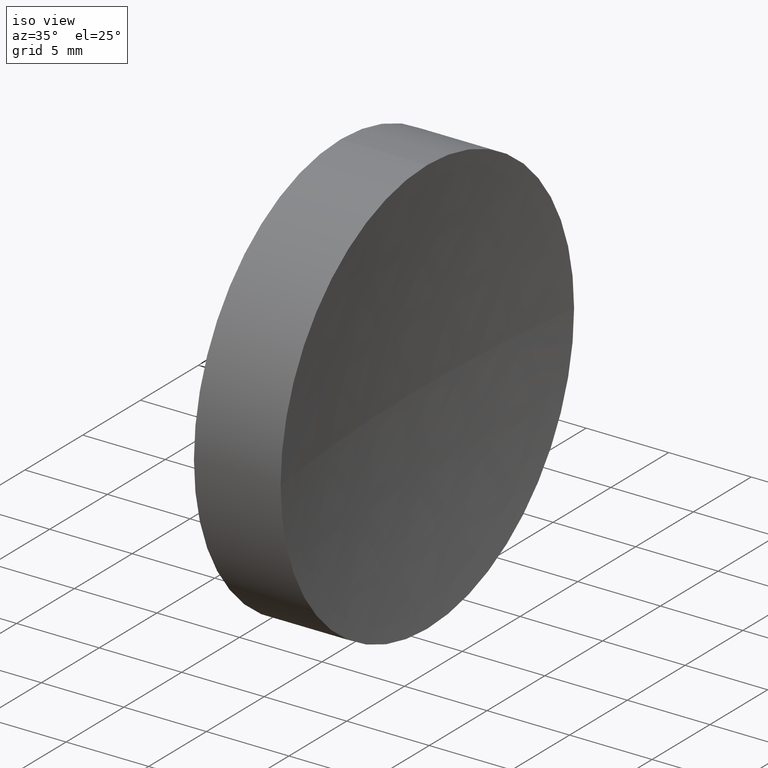
[diagram: clean part render]
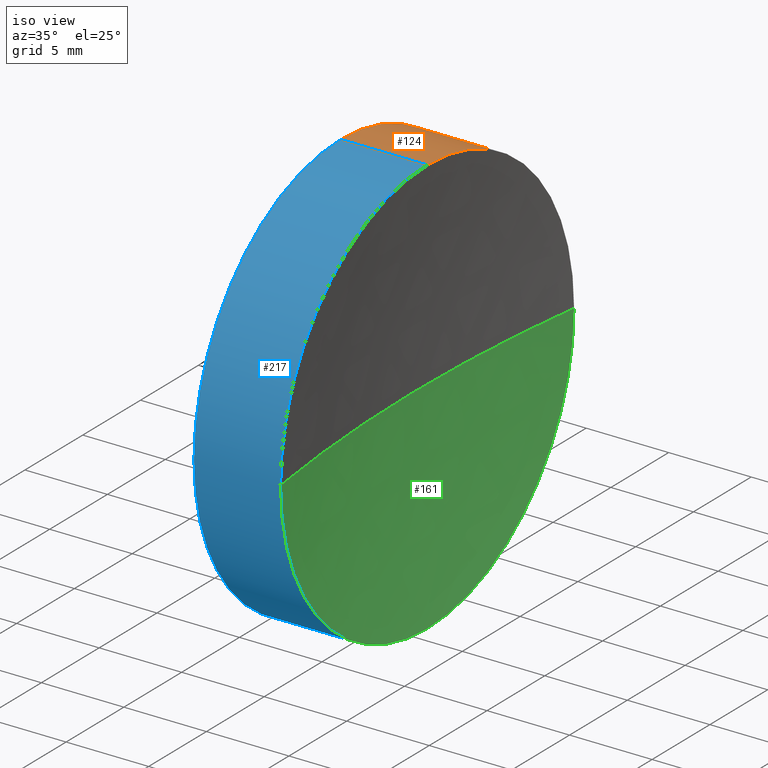
[diagram: same view with three faces highlighted in distinct colors, each labeled with its STEP entity id]
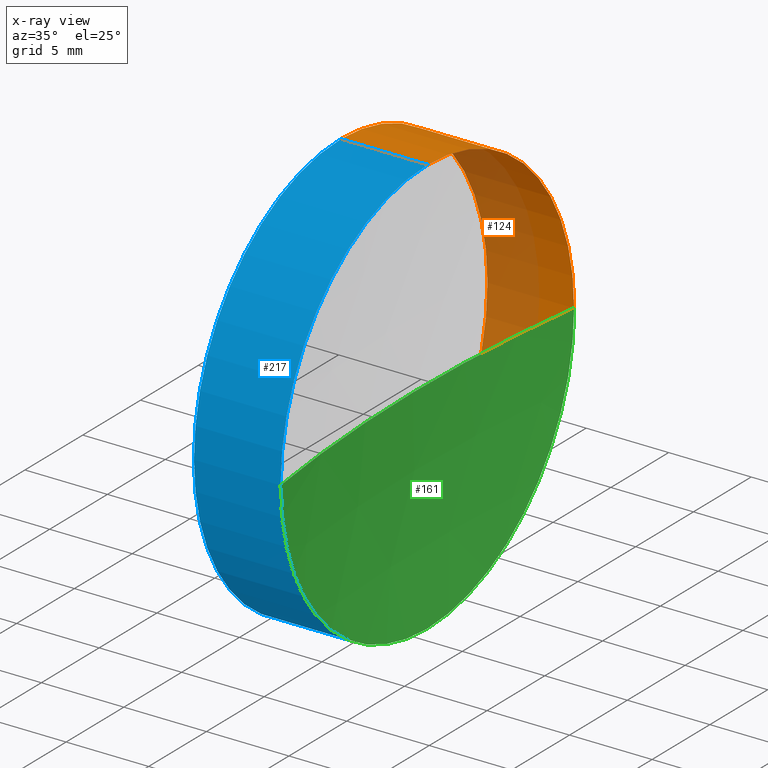
[diagram: x-ray of the same camera — body ghosted, the three highlighted faces saturated]
A machine part, iso view with three faces highlighted in distinct colors.
The next image is the same camera in x-ray (body ghosted, the three faces saturated) — at least one of them is partly hidden behind the body in this view.
Their STEP definitions:

[orange] entity #124 — the highlighted cylindrical surface (partial cylindrical patch) has radius 12.7 mm, axis along (-1, -0, -0).
#4 = CARTESIAN_POINT ( 'NONE',  ( 117.4776727839183900, 77.92260287298734100, 0.0000000000000000000 ) ) ;
#5 = VECTOR ( 'NONE', #171, 1000.000000000000000 ) ;
#6 = DIRECTION ( 'NONE',  ( 0.0000000000000000000, 0.0000000000000000000, 1.000000000000000000 ) ) ;
#7 = ORIENTED_EDGE ( 'NONE', *, *, #120, .T. ) ;
#8 = CARTESIAN_POINT ( 'NONE',  ( 117.4776727839183900, 65.22260287298739500, -12.69999999999997400 ) ) ;
#9 = EDGE_CURVE ( 'NONE', #164, #29, #129, .T. ) ;
#16 = FACE_OUTER_BOUND ( 'NONE', #72, .T. ) ;
#25 = CARTESIAN_POINT ( 'NONE',  ( 122.7277341085402600, 77.92260287298734100, 0.0000000000000000000 ) ) ;
#29 = VERTEX_POINT ( 'NONE', #132 ) ;
#32 = ORIENTED_EDGE ( 'NONE', *, *, #185, .F. ) ;
#43 = CIRCLE ( 'NONE', #208, 12.69999999999997400 ) ;
#47 = LINE ( 'NONE', #202, #5 ) ;
#49 = ORIENTED_EDGE ( 'NONE', *, *, #181, .F. ) ;
#58 = DIRECTION ( 'NONE',  ( 0.0000000000000000000, 0.0000000000000000000, 1.000000000000000000 ) ) ;
#60 = CARTESIAN_POINT ( 'NONE',  ( 122.7277341085402600, 65.22260287298739500, 12.69999999999997400 ) ) ;
#71 = DIRECTION ( 'NONE',  ( 0.0000000000000000000, 0.0000000000000000000, 1.000000000000000000 ) ) ;
#72 = EDGE_LOOP ( 'NONE', ( #126, #7, #32, #49, #199, #182 ) ) ;
#73 = CARTESIAN_POINT ( 'NONE',  ( 122.7277341085402600, 65.22260287298739500, 0.0000000000000000000 ) ) ;
#74 = CIRCLE ( 'NONE', #128, 12.69999999999997400 ) ;
#77 = DIRECTION ( 'NONE',  ( -1.000000000000000000, -0.0000000000000000000, -0.0000000000000000000 ) ) ;
#87 = VERTEX_POINT ( 'NONE', #8 ) ;
#95 = CARTESIAN_POINT ( 'NONE',  ( 109.9369352260864600, 65.22260287298739500, 0.0000000000000000000 ) ) ;
#102 = CIRCLE ( 'NONE', #198, 12.69999999999997400 ) ;
#104 = EDGE_CURVE ( 'NONE', #164, #153, #74, .T. ) ;
#106 = AXIS2_PLACEMENT_3D ( 'NONE', #95, #152, #6 ) ;
#108 = CYLINDRICAL_SURFACE ( 'NONE', #106, 12.69999999999998200 ) ;
#119 = CARTESIAN_POINT ( 'NONE',  ( 117.4776727839183900, 65.22260287298739500, 0.0000000000000000000 ) ) ;
#120 = EDGE_CURVE ( 'NONE', #230, #87, #47, .T. ) ;
#121 = AXIS2_PLACEMENT_3D ( 'NONE', #73, #172, #58 ) ;
#124 = ADVANCED_FACE ( 'NONE', ( #16 ), #108, .T. ) ;
#125 = VECTOR ( 'NONE', #165, 1000.000000000000000 ) ;
#126 = ORIENTED_EDGE ( 'NONE', *, *, #142, .T. ) ;
#128 = AXIS2_PLACEMENT_3D ( 'NONE', #228, #225, #71 ) ;
#129 = LINE ( 'NONE', #169, #125 ) ;
#132 = CARTESIAN_POINT ( 'NONE',  ( 117.4776727839183900, 65.22260287298739500, 12.69999999999997400 ) ) ;
#140 = CARTESIAN_POINT ( 'NONE',  ( 122.7277341085402600, 65.22260287298739500, -12.69999999999997400 ) ) ;
#142 = EDGE_CURVE ( 'NONE', #153, #230, #145, .T. ) ;
#145 = CIRCLE ( 'NONE', #121, 12.69999999999997400 ) ;
#152 = DIRECTION ( 'NONE',  ( -1.000000000000000000, -0.0000000000000000000, -0.0000000000000000000 ) ) ;
#153 = VERTEX_POINT ( 'NONE', #25 ) ;
#164 = VERTEX_POINT ( 'NONE', #60 ) ;
#165 = DIRECTION ( 'NONE',  ( -1.000000000000000000, -0.0000000000000000000, -0.0000000000000000000 ) ) ;
#169 = CARTESIAN_POINT ( 'NONE',  ( 109.9369352260864600, 65.22260287298739500, 12.69999999999998200 ) ) ;
#170 = VERTEX_POINT ( 'NONE', #4 ) ;
#171 = DIRECTION ( 'NONE',  ( -1.000000000000000000, -0.0000000000000000000, -0.0000000000000000000 ) ) ;
#172 = DIRECTION ( 'NONE',  ( -1.000000000000000000, -0.0000000000000000000, -0.0000000000000000000 ) ) ;
#181 = EDGE_CURVE ( 'NONE', #29, #170, #102, .T. ) ;
#182 = ORIENTED_EDGE ( 'NONE', *, *, #104, .T. ) ;
#185 = EDGE_CURVE ( 'NONE', #170, #87, #43, .T. ) ;
#187 = DIRECTION ( 'NONE',  ( -1.000000000000000000, -0.0000000000000000000, -0.0000000000000000000 ) ) ;
#192 = CARTESIAN_POINT ( 'NONE',  ( 117.4776727839183900, 65.22260287298739500, 0.0000000000000000000 ) ) ;
#198 = AXIS2_PLACEMENT_3D ( 'NONE', #192, #77, #209 ) ;
#199 = ORIENTED_EDGE ( 'NONE', *, *, #9, .F. ) ;
#202 = CARTESIAN_POINT ( 'NONE',  ( 109.9369352260864600, 65.22260287298739500, -12.69999999999998200 ) ) ;
#208 = AXIS2_PLACEMENT_3D ( 'NONE', #119, #187, #213 ) ;
#209 = DIRECTION ( 'NONE',  ( 0.0000000000000000000, 0.0000000000000000000, 1.000000000000000000 ) ) ;
#213 = DIRECTION ( 'NONE',  ( 0.0000000000000000000, 0.0000000000000000000, 1.000000000000000000 ) ) ;
#225 = DIRECTION ( 'NONE',  ( -1.000000000000000000, -0.0000000000000000000, -0.0000000000000000000 ) ) ;
#228 = CARTESIAN_POINT ( 'NONE',  ( 122.7277341085402600, 65.22260287298739500, 0.0000000000000000000 ) ) ;
#230 = VERTEX_POINT ( 'NONE', #140 ) ;

[blue] entity #217 — the highlighted cylindrical surface (partial cylindrical patch) has radius 12.7 mm, axis along (-1, -0, -0).
#1 = ORIENTED_EDGE ( 'NONE', *, *, #63, .T. ) ;
#5 = VECTOR ( 'NONE', #171, 1000.000000000000000 ) ;
#8 = CARTESIAN_POINT ( 'NONE',  ( 117.4776727839183900, 65.22260287298739500, -12.69999999999997400 ) ) ;
#9 = EDGE_CURVE ( 'NONE', #164, #29, #129, .T. ) ;
#24 = DIRECTION ( 'NONE',  ( -1.000000000000000000, -0.0000000000000000000, -0.0000000000000000000 ) ) ;
#29 = VERTEX_POINT ( 'NONE', #132 ) ;
#33 = ORIENTED_EDGE ( 'NONE', *, *, #130, .T. ) ;
#36 = EDGE_CURVE ( 'NONE', #87, #52, #221, .T. ) ;
#39 = CARTESIAN_POINT ( 'NONE',  ( 109.9369352260864600, 65.22260287298739500, 0.0000000000000000000 ) ) ;
#41 = CARTESIAN_POINT ( 'NONE',  ( 117.4776727839183900, 65.22260287298739500, 0.0000000000000000000 ) ) ;
#44 = AXIS2_PLACEMENT_3D ( 'NONE', #39, #61, #154 ) ;
#47 = LINE ( 'NONE', #202, #5 ) ;
#48 = CARTESIAN_POINT ( 'NONE',  ( 122.7277341085402600, 65.22260287298739500, 0.0000000000000000000 ) ) ;
#52 = VERTEX_POINT ( 'NONE', #203 ) ;
#53 = DIRECTION ( 'NONE',  ( -1.000000000000000000, -0.0000000000000000000, -0.0000000000000000000 ) ) ;
#60 = CARTESIAN_POINT ( 'NONE',  ( 122.7277341085402600, 65.22260287298739500, 12.69999999999997400 ) ) ;
#61 = DIRECTION ( 'NONE',  ( -1.000000000000000000, -0.0000000000000000000, -0.0000000000000000000 ) ) ;
#63 = EDGE_CURVE ( 'NONE', #230, #147, #68, .T. ) ;
#68 = CIRCLE ( 'NONE', #150, 12.69999999999997400 ) ;
#70 = ORIENTED_EDGE ( 'NONE', *, *, #120, .F. ) ;
#79 = ORIENTED_EDGE ( 'NONE', *, *, #9, .T. ) ;
#87 = VERTEX_POINT ( 'NONE', #8 ) ;
#89 = AXIS2_PLACEMENT_3D ( 'NONE', #223, #53, #167 ) ;
#92 = CARTESIAN_POINT ( 'NONE',  ( 122.7277341085402600, 52.52260287298737800, -1.555301434917131700E-015 ) ) ;
#93 = FACE_OUTER_BOUND ( 'NONE', #131, .T. ) ;
#109 = ORIENTED_EDGE ( 'NONE', *, *, #197, .F. ) ;
#115 = AXIS2_PLACEMENT_3D ( 'NONE', #226, #24, #135 ) ;
#118 = CYLINDRICAL_SURFACE ( 'NONE', #44, 12.69999999999998200 ) ;
#120 = EDGE_CURVE ( 'NONE', #230, #87, #47, .T. ) ;
#125 = VECTOR ( 'NONE', #165, 1000.000000000000000 ) ;
#129 = LINE ( 'NONE', #169, #125 ) ;
#130 = EDGE_CURVE ( 'NONE', #147, #164, #194, .T. ) ;
#131 = EDGE_LOOP ( 'NONE', ( #70, #1, #33, #79, #109, #160 ) ) ;
#132 = CARTESIAN_POINT ( 'NONE',  ( 117.4776727839183900, 65.22260287298739500, 12.69999999999997400 ) ) ;
#135 = DIRECTION ( 'NONE',  ( 0.0000000000000000000, 0.0000000000000000000, 1.000000000000000000 ) ) ;
#139 = DIRECTION ( 'NONE',  ( 0.0000000000000000000, 0.0000000000000000000, 1.000000000000000000 ) ) ;
#140 = CARTESIAN_POINT ( 'NONE',  ( 122.7277341085402600, 65.22260287298739500, -12.69999999999997400 ) ) ;
#147 = VERTEX_POINT ( 'NONE', #92 ) ;
#150 = AXIS2_PLACEMENT_3D ( 'NONE', #48, #184, #220 ) ;
#154 = DIRECTION ( 'NONE',  ( 0.0000000000000000000, 0.0000000000000000000, 1.000000000000000000 ) ) ;
#157 = DIRECTION ( 'NONE',  ( -1.000000000000000000, -0.0000000000000000000, -0.0000000000000000000 ) ) ;
#160 = ORIENTED_EDGE ( 'NONE', *, *, #36, .F. ) ;
#164 = VERTEX_POINT ( 'NONE', #60 ) ;
#165 = DIRECTION ( 'NONE',  ( -1.000000000000000000, -0.0000000000000000000, -0.0000000000000000000 ) ) ;
#167 = DIRECTION ( 'NONE',  ( 0.0000000000000000000, 0.0000000000000000000, 1.000000000000000000 ) ) ;
#169 = CARTESIAN_POINT ( 'NONE',  ( 109.9369352260864600, 65.22260287298739500, 12.69999999999998200 ) ) ;
#171 = DIRECTION ( 'NONE',  ( -1.000000000000000000, -0.0000000000000000000, -0.0000000000000000000 ) ) ;
#184 = DIRECTION ( 'NONE',  ( -1.000000000000000000, -0.0000000000000000000, -0.0000000000000000000 ) ) ;
#194 = CIRCLE ( 'NONE', #115, 12.69999999999997400 ) ;
#197 = EDGE_CURVE ( 'NONE', #52, #29, #205, .T. ) ;
#202 = CARTESIAN_POINT ( 'NONE',  ( 109.9369352260864600, 65.22260287298739500, -12.69999999999998200 ) ) ;
#203 = CARTESIAN_POINT ( 'NONE',  ( 117.4776727839183900, 52.52260287298737800, -1.555301434917131700E-015 ) ) ;
#205 = CIRCLE ( 'NONE', #222, 12.69999999999997400 ) ;
#217 = ADVANCED_FACE ( 'NONE', ( #93 ), #118, .T. ) ;
#220 = DIRECTION ( 'NONE',  ( 0.0000000000000000000, 0.0000000000000000000, 1.000000000000000000 ) ) ;
#221 = CIRCLE ( 'NONE', #89, 12.69999999999997400 ) ;
#222 = AXIS2_PLACEMENT_3D ( 'NONE', #41, #157, #139 ) ;
#223 = CARTESIAN_POINT ( 'NONE',  ( 117.4776727839183900, 65.22260287298739500, 0.0000000000000000000 ) ) ;
#226 = CARTESIAN_POINT ( 'NONE',  ( 122.7277341085402600, 65.22260287298739500, 0.0000000000000000000 ) ) ;
#230 = VERTEX_POINT ( 'NONE', #140 ) ;

[green] entity #161 — the highlighted spherical surface has radius 92.6 mm.
#10 = DIRECTION ( 'NONE',  ( 0.0000000000000000000, 1.000000000000000000, 1.224646799147353000E-016 ) ) ;
#13 = SPHERICAL_SURFACE ( 'NONE', #94, 92.59999999999999400 ) ;
#14 = VERTEX_POINT ( 'NONE', #35 ) ;
#15 = AXIS2_PLACEMENT_3D ( 'NONE', #149, #56, #97 ) ;
#25 = CARTESIAN_POINT ( 'NONE',  ( 122.7277341085402600, 77.92260287298734100, 0.0000000000000000000 ) ) ;
#35 = CARTESIAN_POINT ( 'NONE',  ( 121.8527034462293400, 65.22260287298732400, 0.0000000000000000000 ) ) ;
#48 = CARTESIAN_POINT ( 'NONE',  ( 122.7277341085402600, 65.22260287298739500, 0.0000000000000000000 ) ) ;
#55 = CARTESIAN_POINT ( 'NONE',  ( 214.4527034462293200, 65.22260287298732400, 0.0000000000000000000 ) ) ;
#56 = DIRECTION ( 'NONE',  ( 0.0000000000000000000, 0.0000000000000000000, 1.000000000000000000 ) ) ;
#57 = FACE_OUTER_BOUND ( 'NONE', #191, .T. ) ;
#58 = DIRECTION ( 'NONE',  ( 0.0000000000000000000, 0.0000000000000000000, 1.000000000000000000 ) ) ;
#63 = EDGE_CURVE ( 'NONE', #230, #147, #68, .T. ) ;
#64 = EDGE_CURVE ( 'NONE', #147, #14, #166, .T. ) ;
#68 = CIRCLE ( 'NONE', #150, 12.69999999999997400 ) ;
#73 = CARTESIAN_POINT ( 'NONE',  ( 122.7277341085402600, 65.22260287298739500, 0.0000000000000000000 ) ) ;
#86 = EDGE_CURVE ( 'NONE', #153, #14, #232, .T. ) ;
#92 = CARTESIAN_POINT ( 'NONE',  ( 122.7277341085402600, 52.52260287298737800, -1.555301434917131700E-015 ) ) ;
#94 = AXIS2_PLACEMENT_3D ( 'NONE', #55, #136, #173 ) ;
#97 = DIRECTION ( 'NONE',  ( 1.000000000000000000, 0.0000000000000000000, 0.0000000000000000000 ) ) ;
#103 = ORIENTED_EDGE ( 'NONE', *, *, #63, .F. ) ;
#110 = CARTESIAN_POINT ( 'NONE',  ( 214.4527034462293200, 65.22260287298732400, 0.0000000000000000000 ) ) ;
#111 = ORIENTED_EDGE ( 'NONE', *, *, #86, .T. ) ;
#121 = AXIS2_PLACEMENT_3D ( 'NONE', #73, #172, #58 ) ;
#136 = DIRECTION ( 'NONE',  ( 0.0000000000000000000, 0.0000000000000000000, -1.000000000000000000 ) ) ;
#140 = CARTESIAN_POINT ( 'NONE',  ( 122.7277341085402600, 65.22260287298739500, -12.69999999999997400 ) ) ;
#142 = EDGE_CURVE ( 'NONE', #153, #230, #145, .T. ) ;
#145 = CIRCLE ( 'NONE', #121, 12.69999999999997400 ) ;
#147 = VERTEX_POINT ( 'NONE', #92 ) ;
#149 = CARTESIAN_POINT ( 'NONE',  ( 214.4527034462293200, 65.22260287298732400, 0.0000000000000000000 ) ) ;
#150 = AXIS2_PLACEMENT_3D ( 'NONE', #48, #184, #220 ) ;
#153 = VERTEX_POINT ( 'NONE', #25 ) ;
#161 = ADVANCED_FACE ( 'NONE', ( #57 ), #13, .F. ) ;
#166 = CIRCLE ( 'NONE', #193, 92.60000000000000900 ) ;
#172 = DIRECTION ( 'NONE',  ( -1.000000000000000000, -0.0000000000000000000, -0.0000000000000000000 ) ) ;
#173 = DIRECTION ( 'NONE',  ( 0.0000000000000000000, 1.000000000000000000, 0.0000000000000000000 ) ) ;
#184 = DIRECTION ( 'NONE',  ( -1.000000000000000000, -0.0000000000000000000, -0.0000000000000000000 ) ) ;
#190 = DIRECTION ( 'NONE',  ( 0.0000000000000000000, 1.224646799147353200E-016, -1.000000000000000000 ) ) ;
#191 = EDGE_LOOP ( 'NONE', ( #201, #103, #224, #111 ) ) ;
#193 = AXIS2_PLACEMENT_3D ( 'NONE', #110, #190, #10 ) ;
#201 = ORIENTED_EDGE ( 'NONE', *, *, #64, .F. ) ;
#220 = DIRECTION ( 'NONE',  ( 0.0000000000000000000, 0.0000000000000000000, 1.000000000000000000 ) ) ;
#224 = ORIENTED_EDGE ( 'NONE', *, *, #142, .F. ) ;
#230 = VERTEX_POINT ( 'NONE', #140 ) ;
#232 = CIRCLE ( 'NONE', #15, 92.59999999999999400 ) ;